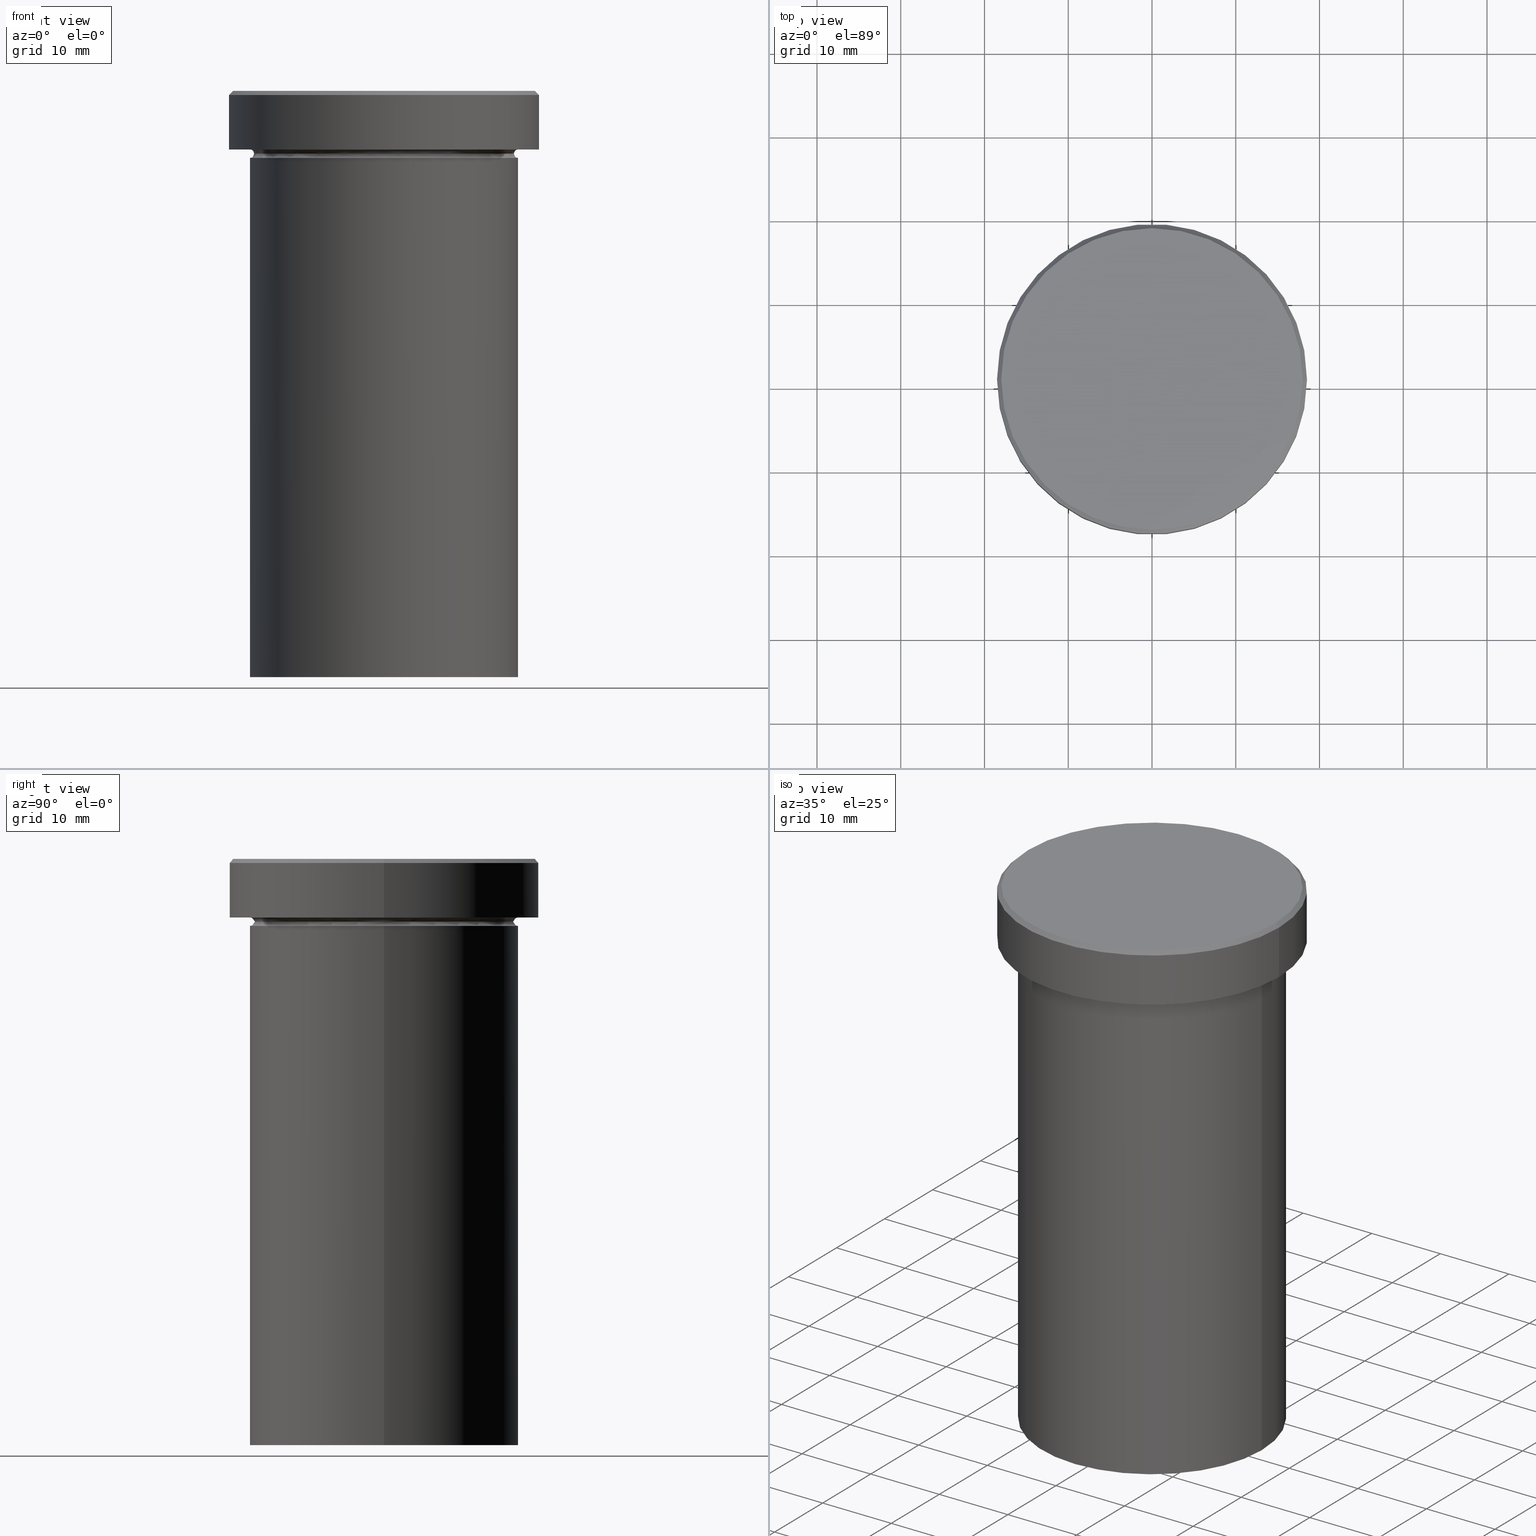
[diagram: canonical four-view strip — front | top / right | iso, engineering-drawing reading convention]
A machine part, canonical four-view strip (front | top / right | iso — engineering-drawing reading convention). The complete STEP part file that produces these views, byte-faithful:
ISO-10303-21;
HEADER;
FILE_DESCRIPTION (( 'STEP AP203' ),
    '1' );
FILE_NAME ('698d.STEP',
    '2024-01-02T19:14:31',
    ( '' ),
    ( '' ),
    'SwSTEP 2.0',
    'SolidWorks 2019',
    '' );
FILE_SCHEMA (( 'CONFIG_CONTROL_DESIGN' ));
ENDSEC;

DATA;
#1 = ORIENTED_EDGE ( 'NONE', *, *, #257, .T. ) ;
#2 = EDGE_CURVE ( 'NONE', #278, #381, #230, .T. ) ;
#3 =( NAMED_UNIT ( * ) SI_UNIT ( $, .STERADIAN. ) SOLID_ANGLE_UNIT ( ) );
#4 = EDGE_CURVE ( 'NONE', #285, #153, #401, .T. ) ;
#5 = ORIENTED_EDGE ( 'NONE', *, *, #2, .T. ) ;
#6 = CARTESIAN_POINT ( 'NONE',  ( 0.000000000000000000, 0.000000000000000000, 0.000000000000000000 ) ) ;
#7 = ORIENTED_EDGE ( 'NONE', *, *, #250, .T. ) ;
#8 = ADVANCED_FACE ( 'NONE', ( #37, #260 ), #130, .T. ) ;
#9 = DIRECTION ( 'NONE',  ( 1.000000000000000000, 0.000000000000000000, 0.000000000000000000 ) ) ;
#10 = AXIS2_PLACEMENT_3D ( 'NONE', #190, #322, #276 ) ;
#11 = VERTEX_POINT ( 'NONE', #324 ) ;
#12 = DIRECTION ( 'NONE',  ( 1.000000000000000000, 0.000000000000000000, 0.000000000000000000 ) ) ;
#13 = DIRECTION ( 'NONE',  ( 1.000000000000000000, 0.000000000000000000, 0.000000000000000000 ) ) ;
#14 = DIRECTION ( 'NONE',  ( 1.224646799147353207E-16, 1.000000000000000000, 0.000000000000000000 ) ) ;
#15 = LINE ( 'NONE', #136, #254 ) ;
#16 =( GEOMETRIC_REPRESENTATION_CONTEXT ( 3 ) GLOBAL_UNCERTAINTY_ASSIGNED_CONTEXT ( ( #65 ) ) GLOBAL_UNIT_ASSIGNED_CONTEXT ( ( #321, #158, #3 ) ) REPRESENTATION_CONTEXT ( 'NONE', 'WORKASPACE' ) );
#17 = DIRECTION ( 'NONE',  ( -0.7071067811865352493, 0.000000000000000000, -0.7071067811865597852 ) ) ;
#18 = APPROVAL_STATUS ( 'not_yet_approved' ) ;
#19 = DIRECTION ( 'NONE',  ( 1.000000000000000000, 0.000000000000000000, 0.000000000000000000 ) ) ;
#20 = DATE_TIME_ROLE ( 'classification_date' ) ;
#21 = CARTESIAN_POINT ( 'NONE',  ( -18.00000000000001066, 0.000000000000000000, 0.000000000000000000 ) ) ;
#22 = APPROVAL_PERSON_ORGANIZATION ( #125, #174, #330 ) ;
#23 = VECTOR ( 'NONE', #115, 1000.000000000000000 ) ;
#24 = CARTESIAN_POINT ( 'NONE',  ( 16.00000000000000000, 1.959434878635765131E-15, -6.999999999999999112 ) ) ;
#25 = EDGE_CURVE ( 'NONE', #36, #116, #100, .T. ) ;
#26 = LINE ( 'NONE', #146, #23 ) ;
#27 = ORIENTED_EDGE ( 'NONE', *, *, #2, .F. ) ;
#28 = DIRECTION ( 'NONE',  ( 1.000000000000000000, 0.000000000000000000, 0.000000000000000000 ) ) ;
#29 = ORIENTED_EDGE ( 'NONE', *, *, #4, .T. ) ;
#30 = DIRECTION ( 'NONE',  ( 0.000000000000000000, 0.000000000000000000, -1.000000000000000000 ) ) ;
#31 = ORIENTED_EDGE ( 'NONE', *, *, #111, .F. ) ;
#32 = EDGE_LOOP ( 'NONE', ( #300, #385, #249, #287 ) ) ;
#33 = ORIENTED_EDGE ( 'NONE', *, *, #380, .T. ) ;
#34 = CYLINDRICAL_SURFACE ( 'NONE', #152, 18.50000000000000000 ) ;
#35 = ORGANIZATION ( 'NEUR�EN�', 'NEUR�EN�', '' ) ;
#36 = VERTEX_POINT ( 'NONE', #225 ) ;
#37 = FACE_BOUND ( 'NONE', #179, .T. ) ;
#38 = DIRECTION ( 'NONE',  ( -0.000000000000000000, -0.000000000000000000, 1.000000000000000000 ) ) ;
#39 = APPROVAL_STATUS ( 'not_yet_approved' ) ;
#40 = DIRECTION ( 'NONE',  ( -1.000000000000000000, 0.000000000000000000, -0.000000000000000000 ) ) ;
#41 = AXIS2_PLACEMENT_3D ( 'NONE', #60, #360, #91 ) ;
#42 = LOCAL_TIME ( 20, 14, 31.00000000000000000, #226 ) ;
#43 = PERSON_AND_ORGANIZATION ( #218, #35 ) ;
#44 = CARTESIAN_POINT ( 'NONE',  ( 16.00000000000000000, 1.959434878635765131E-15, -7.500000000000000000 ) ) ;
#45 = DIRECTION ( 'NONE',  ( 1.000000000000000000, 0.000000000000000000, 0.000000000000000000 ) ) ;
#46 = EDGE_CURVE ( 'NONE', #216, #121, #319, .T. ) ;
#47 = AXIS2_PLACEMENT_3D ( 'NONE', #269, #232, #204 ) ;
#48 = CC_DESIGN_PERSON_AND_ORGANIZATION_ASSIGNMENT ( #316, #286, ( #346 ) ) ;
#49 = FACE_OUTER_BOUND ( 'NONE', #212, .T. ) ;
#50 = AXIS2_PLACEMENT_3D ( 'NONE', #73, #163, #19 ) ;
#51 = VECTOR ( 'NONE', #210, 1000.000000000000000 ) ;
#52 = DIRECTION ( 'NONE',  ( -0.000000000000000000, -0.000000000000000000, 1.000000000000000000 ) ) ;
#53 = ORIENTED_EDGE ( 'NONE', *, *, #221, .T. ) ;
#54 = PLANE ( 'NONE',  #47 ) ;
#55 = EDGE_LOOP ( 'NONE', ( #297, #29 ) ) ;
#56 = DIRECTION ( 'NONE',  ( -0.000000000000000000, -0.000000000000000000, 1.000000000000000000 ) ) ;
#57 = CC_DESIGN_PERSON_AND_ORGANIZATION_ASSIGNMENT ( #323, #261, ( #283 ) ) ;
#58 = ORIENTED_EDGE ( 'NONE', *, *, #154, .F. ) ;
#59 = ADVANCED_FACE ( 'NONE', ( #227 ), #160, .T. ) ;
#60 = CARTESIAN_POINT ( 'NONE',  ( 0.000000000000000000, 0.000000000000000000, 0.000000000000000000 ) ) ;
#61 = AXIS2_PLACEMENT_3D ( 'NONE', #406, #52, #369 ) ;
#62 = ORIENTED_EDGE ( 'NONE', *, *, #169, .T. ) ;
#63 = ORIENTED_EDGE ( 'NONE', *, *, #248, .T. ) ;
#64 = DIRECTION ( 'NONE',  ( -1.000000000000000000, 0.000000000000000000, 0.000000000000000000 ) ) ;
#65 = UNCERTAINTY_MEASURE_WITH_UNIT (LENGTH_MEASURE( 1.000000000000000082E-05 ), #321, 'distance_accuracy_value', 'NONE');
#66 = CARTESIAN_POINT ( 'NONE',  ( 0.000000000000000000, 18.50000000000000000, -6.999999999999999112 ) ) ;
#67 = DIRECTION ( 'NONE',  ( -0.000000000000000000, -0.000000000000000000, 1.000000000000000000 ) ) ;
#68 = AXIS2_PLACEMENT_3D ( 'NONE', #78, #355, #12 ) ;
#69 = AXIS2_PLACEMENT_3D ( 'NONE', #302, #208, #45 ) ;
#70 = DIRECTION ( 'NONE',  ( -1.000000000000000000, 1.224646799147349509E-16, 0.000000000000000000 ) ) ;
#71 = DIRECTION ( 'NONE',  ( -0.000000000000000000, -0.000000000000000000, 1.000000000000000000 ) ) ;
#72 = ADVANCED_BREP_SHAPE_REPRESENTATION ( '698d', ( #240, #195 ), #16 ) ;
#73 = CARTESIAN_POINT ( 'NONE',  ( 0.000000000000000000, 0.000000000000000000, -7.500000000000000000 ) ) ;
#74 = PERSON_AND_ORGANIZATION_ROLE ( 'design_supplier' ) ;
#75 = DIRECTION ( 'NONE',  ( -1.224646799147353207E-16, 1.000000000000000000, 0.000000000000000000 ) ) ;
#76 = CALENDAR_DATE ( 2024, 2, 1 ) ;
#77 = TOROIDAL_SURFACE ( 'NONE', #50, 16.00000000000000000, 0.5000000000000000000 ) ;
#78 = CARTESIAN_POINT ( 'NONE',  ( 0.000000000000000000, 0.000000000000000000, 0.000000000000000000 ) ) ;
#79 = CIRCLE ( 'NONE', #112, 15.50000000000000000 ) ;
#80 = PERSON_AND_ORGANIZATION ( #218, #35 ) ;
#81 = LINE ( 'NONE', #374, #51 ) ;
#82 = CALENDAR_DATE ( 2024, 2, 1 ) ;
#83 = VECTOR ( 'NONE', #404, 1000.000000000000000 ) ;
#84 = CARTESIAN_POINT ( 'NONE',  ( -16.00000000000000000, 0.000000000000000000, -7.500000000000000000 ) ) ;
#85 = ORIENTED_EDGE ( 'NONE', *, *, #169, .F. ) ;
#86 = CIRCLE ( 'NONE', #333, 16.00000000000000000 ) ;
#87 = DIRECTION ( 'NONE',  ( -0.000000000000000000, -0.000000000000000000, 1.000000000000000000 ) ) ;
#88 = VERTEX_POINT ( 'NONE', #266 ) ;
#89 = DIRECTION ( 'NONE',  ( 1.000000000000000000, 0.000000000000000000, 0.000000000000000000 ) ) ;
#90 = EDGE_LOOP ( 'NONE', ( #148, #53, #85, #31 ) ) ;
#91 = DIRECTION ( 'NONE',  ( -1.000000000000000000, 0.000000000000000000, 0.000000000000000000 ) ) ;
#92 = EDGE_LOOP ( 'NONE', ( #182, #156, #339, #162 ) ) ;
#93 = CIRCLE ( 'NONE', #328, 16.00000000000000000 ) ;
#94 = EDGE_LOOP ( 'NONE', ( #242, #1, #175, #58 ) ) ;
#95 = PLANE ( 'NONE',  #10 ) ;
#96 = PRODUCT_RELATED_PRODUCT_CATEGORY ( 'detail', '', ( #346 ) ) ;
#97 = CARTESIAN_POINT ( 'NONE',  ( 0.000000000000000000, 0.000000000000000000, -7.500000000000000000 ) ) ;
#98 = LINE ( 'NONE', #295, #347 ) ;
#99 = DIRECTION ( 'NONE',  ( 0.000000000000000000, 0.000000000000000000, -1.000000000000000000 ) ) ;
#100 = CIRCLE ( 'NONE', #200, 0.5000000000000004441 ) ;
#101 = AXIS2_PLACEMENT_3D ( 'NONE', #173, #372, #28 ) ;
#102 = VERTEX_POINT ( 'NONE', #358 ) ;
#103 = APPROVAL_DATE_TIME ( #133, #400 ) ;
#104 = DIRECTION ( 'NONE',  ( -0.000000000000000000, -0.000000000000000000, 1.000000000000000000 ) ) ;
#105 = APPROVAL_STATUS ( 'not_yet_approved' ) ;
#106 = EDGE_LOOP ( 'NONE', ( #383, #184, #326, #315 ) ) ;
#107 = SECURITY_CLASSIFICATION_LEVEL ( 'unclassified' ) ;
#108 = FACE_OUTER_BOUND ( 'NONE', #293, .T. ) ;
#109 = AXIS2_PLACEMENT_3D ( 'NONE', #84, #202, #113 ) ;
#110 = COORDINATED_UNIVERSAL_TIME_OFFSET ( 1, 0, .AHEAD. ) ;
#111 = EDGE_CURVE ( 'NONE', #153, #348, #98, .T. ) ;
#112 = AXIS2_PLACEMENT_3D ( 'NONE', #311, #56, #147 ) ;
#113 = DIRECTION ( 'NONE',  ( 0.000000000000000000, 0.000000000000000000, -1.000000000000000000 ) ) ;
#114 = CARTESIAN_POINT ( 'NONE',  ( 0.000000000000000000, 0.000000000000000000, -70.00000000000000000 ) ) ;
#115 = DIRECTION ( 'NONE',  ( 0.7071067811865352493, 8.659560562354782482E-17, -0.7071067811865597852 ) ) ;
#116 = VERTEX_POINT ( 'NONE', #258 ) ;
#117 = ADVANCED_FACE ( 'NONE', ( #256 ), #77, .F. ) ;
#118 = FACE_OUTER_BOUND ( 'NONE', #32, .T. ) ;
#119 = EDGE_CURVE ( 'NONE', #36, #278, #288, .T. ) ;
#120 = ORIENTED_EDGE ( 'NONE', *, *, #124, .T. ) ;
#121 = VERTEX_POINT ( 'NONE', #390 ) ;
#122 = DIRECTION ( 'NONE',  ( 0.000000000000000000, 0.000000000000000000, 1.000000000000000000 ) ) ;
#123 = ORIENTED_EDGE ( 'NONE', *, *, #257, .F. ) ;
#124 = EDGE_CURVE ( 'NONE', #205, #88, #289, .T. ) ;
#125 = PERSON_AND_ORGANIZATION ( #218, #35 ) ;
#126 = CIRCLE ( 'NONE', #231, 16.00000000000000000 ) ;
#127 = LOCAL_TIME ( 20, 14, 31.00000000000000000, #110 ) ;
#128 = ORIENTED_EDGE ( 'NONE', *, *, #238, .F. ) ;
#129 = FACE_OUTER_BOUND ( 'NONE', #94, .T. ) ;
#130 = PLANE ( 'NONE',  #157 ) ;
#131 = CARTESIAN_POINT ( 'NONE',  ( -16.00000000000000000, 0.000000000000000000, -6.999999999999999112 ) ) ;
#132 = ORIENTED_EDGE ( 'NONE', *, *, #248, .F. ) ;
#133 = DATE_AND_TIME ( #370, #42 ) ;
#134 = CLOSED_SHELL ( 'NONE', ( #334, #357, #203, #59, #405, #149, #143, #263, #8, #304, #117, #303, #274 ) ) ;
#135 = AXIS2_PLACEMENT_3D ( 'NONE', #178, #239, #172 ) ;
#136 = CARTESIAN_POINT ( 'NONE',  ( -16.00000000000000000, 1.959434878635765131E-15, 0.000000000000000000 ) ) ;
#137 = DIRECTION ( 'NONE',  ( 0.000000000000000000, -1.000000000000000000, 0.000000000000000000 ) ) ;
#138 = COORDINATED_UNIVERSAL_TIME_OFFSET ( 1, 0, .AHEAD. ) ;
#139 = CARTESIAN_POINT ( 'NONE',  ( 18.00000000000001066, 2.234980408443920004E-15, 0.000000000000000000 ) ) ;
#140 = EDGE_CURVE ( 'NONE', #11, #88, #15, .T. ) ;
#141 = DATE_AND_TIME ( #82, #272 ) ;
#142 = LOCAL_TIME ( 20, 14, 31.00000000000000000, #138 ) ;
#143 = ADVANCED_FACE ( 'NONE', ( #388 ), #95, .T. ) ;
#144 = TOROIDAL_SURFACE ( 'NONE', #101, 16.00000000000000000, 0.5000000000000000000 ) ;
#145 = CIRCLE ( 'NONE', #109, 0.5000000000000004441 ) ;
#146 = CARTESIAN_POINT ( 'NONE',  ( 18.00000000000001066, 2.204364238465237006E-15, 0.000000000000000000 ) ) ;
#147 = DIRECTION ( 'NONE',  ( 1.000000000000000000, 0.000000000000000000, 0.000000000000000000 ) ) ;
#148 = ORIENTED_EDGE ( 'NONE', *, *, #4, .F. ) ;
#149 = ADVANCED_FACE ( 'NONE', ( #331 ), #54, .T. ) ;
#150 = DIRECTION ( 'NONE',  ( 0.000000000000000000, 0.000000000000000000, -1.000000000000000000 ) ) ;
#151 = APPROVAL ( #39, 'NEUR�EN�' ) ;
#152 = AXIS2_PLACEMENT_3D ( 'NONE', #382, #67, #187 ) ;
#153 = VERTEX_POINT ( 'NONE', #21 ) ;
#154 = EDGE_CURVE ( 'NONE', #88, #116, #262, .T. ) ;
#155 = ORIENTED_EDGE ( 'NONE', *, *, #351, .F. ) ;
#156 = ORIENTED_EDGE ( 'NONE', *, *, #119, .T. ) ;
#157 = AXIS2_PLACEMENT_3D ( 'NONE', #66, #264, #40 ) ;
#158 =( NAMED_UNIT ( * ) PLANE_ANGLE_UNIT ( ) SI_UNIT ( $, .RADIAN. ) );
#159 = AXIS2_PLACEMENT_3D ( 'NONE', #191, #30, #356 ) ;
#160 = CYLINDRICAL_SURFACE ( 'NONE', #164, 16.00000000000000000 ) ;
#161 = CARTESIAN_POINT ( 'NONE',  ( 0.000000000000000000, 0.000000000000000000, -7.500000000000000000 ) ) ;
#162 = ORIENTED_EDGE ( 'NONE', *, *, #250, .F. ) ;
#163 = DIRECTION ( 'NONE',  ( -0.000000000000000000, -0.000000000000000000, 1.000000000000000000 ) ) ;
#164 = AXIS2_PLACEMENT_3D ( 'NONE', #196, #38, #329 ) ;
#165 = CIRCLE ( 'NONE', #320, 18.50000000000000000 ) ;
#166 = CARTESIAN_POINT ( 'NONE',  ( 16.00000000000000000, 0.000000000000000000, -7.500000000000000000 ) ) ;
#167 = PERSON_AND_ORGANIZATION_ROLE ( 'classification_officer' ) ;
#168 = DIRECTION ( 'NONE',  ( -0.000000000000000000, -0.000000000000000000, 1.000000000000000000 ) ) ;
#169 = EDGE_CURVE ( 'NONE', #348, #121, #296, .T. ) ;
#170 = CARTESIAN_POINT ( 'NONE',  ( 18.50000000000000000, 0.000000000000000000, -6.999999999999999112 ) ) ;
#171 = AXIS2_PLACEMENT_3D ( 'NONE', #279, #408, #309 ) ;
#172 = DIRECTION ( 'NONE',  ( 1.000000000000000000, 0.000000000000000000, 0.000000000000000000 ) ) ;
#173 = CARTESIAN_POINT ( 'NONE',  ( 0.000000000000000000, 0.000000000000000000, -7.500000000000000000 ) ) ;
#174 = APPROVAL ( #105, 'NEUR�EN�' ) ;
#175 = ORIENTED_EDGE ( 'NONE', *, *, #199, .T. ) ;
#176 = CARTESIAN_POINT ( 'NONE',  ( -15.50000000000000000, 1.928818708657081344E-15, -7.500000000000000000 ) ) ;
#177 = ORIENTED_EDGE ( 'NONE', *, *, #46, .F. ) ;
#178 = CARTESIAN_POINT ( 'NONE',  ( 0.000000000000000000, 0.000000000000000000, 0.000000000000000000 ) ) ;
#179 = EDGE_LOOP ( 'NONE', ( #209, #5 ) ) ;
#180 = AXIS2_PLACEMENT_3D ( 'NONE', #185, #352, #391 ) ;
#181 = FACE_OUTER_BOUND ( 'NONE', #392, .T. ) ;
#182 = ORIENTED_EDGE ( 'NONE', *, *, #351, .T. ) ;
#183 = APPLICATION_PROTOCOL_DEFINITION ( 'international standard', 'config_control_design', 1994, #246 ) ;
#184 = ORIENTED_EDGE ( 'NONE', *, *, #140, .T. ) ;
#185 = CARTESIAN_POINT ( 'NONE',  ( 0.000000000000000000, 0.000000000000000000, 0.000000000000000000 ) ) ;
#186 = CARTESIAN_POINT ( 'NONE',  ( 18.50000000000000000, 0.000000000000000000, 0.000000000000000000 ) ) ;
#187 = DIRECTION ( 'NONE',  ( 1.000000000000000000, 0.000000000000000000, 0.000000000000000000 ) ) ;
#188 = CIRCLE ( 'NONE', #337, 15.50000000000000000 ) ;
#189 = CC_DESIGN_DATE_AND_TIME_ASSIGNMENT ( #394, #327, ( #283 ) ) ;
#190 = CARTESIAN_POINT ( 'NONE',  ( 0.000000000000000000, 0.000000000000000000, 0.000000000000000000 ) ) ;
#191 = CARTESIAN_POINT ( 'NONE',  ( 0.000000000000000000, 0.000000000000000000, -7.500000000000000000 ) ) ;
#192 = DIRECTION ( 'NONE',  ( 0.000000000000000000, 0.000000000000000000, -1.000000000000000000 ) ) ;
#193 = DIRECTION ( 'NONE',  ( -1.000000000000000000, -1.224646799147349509E-16, 0.000000000000000000 ) ) ;
#194 = COORDINATED_UNIVERSAL_TIME_OFFSET ( 1, 0, .AHEAD. ) ;
#195 = AXIS2_PLACEMENT_3D ( 'NONE', #6, #122, #251 ) ;
#196 = CARTESIAN_POINT ( 'NONE',  ( 0.000000000000000000, 0.000000000000000000, 0.000000000000000000 ) ) ;
#197 = APPROVAL_PERSON_ORGANIZATION ( #270, #151, #399 ) ;
#198 = FACE_OUTER_BOUND ( 'NONE', #284, .T. ) ;
#199 = EDGE_CURVE ( 'NONE', #229, #116, #81, .T. ) ;
#200 = AXIS2_PLACEMENT_3D ( 'NONE', #166, #137, #192 ) ;
#201 = CONICAL_SURFACE ( 'NONE', #41, 18.00000000000001066, 0.7853981633974309595 ) ;
#202 = DIRECTION ( 'NONE',  ( -0.000000000000000000, -1.000000000000000000, -0.000000000000000000 ) ) ;
#203 = ADVANCED_FACE ( 'NONE', ( #198 ), #144, .F. ) ;
#204 = DIRECTION ( 'NONE',  ( -1.000000000000000000, 0.000000000000000000, -0.000000000000000000 ) ) ;
#205 = VERTEX_POINT ( 'NONE', #176 ) ;
#206 = CIRCLE ( 'NONE', #69, 18.50000000000000000 ) ;
#207 = CC_DESIGN_APPROVAL ( #151, ( #338 ) ) ;
#208 = DIRECTION ( 'NONE',  ( -0.000000000000000000, -0.000000000000000000, 1.000000000000000000 ) ) ;
#209 = ORIENTED_EDGE ( 'NONE', *, *, #341, .T. ) ;
#210 = DIRECTION ( 'NONE',  ( -0.000000000000000000, -0.000000000000000000, 1.000000000000000000 ) ) ;
#211 = EDGE_CURVE ( 'NONE', #121, #348, #165, .T. ) ;
#212 = EDGE_LOOP ( 'NONE', ( #132, #310, #312, #377 ) ) ;
#213 = DIRECTION ( 'NONE',  ( -0.000000000000000000, -0.000000000000000000, 1.000000000000000000 ) ) ;
#214 = ORIENTED_EDGE ( 'NONE', *, *, #366, .F. ) ;
#215 = PRODUCT_DEFINITION_FORMATION_WITH_SPECIFIED_SOURCE ( 'LIBOVOLN�', '', #346, .NOT_KNOWN. ) ;
#216 = VERTEX_POINT ( 'NONE', #170 ) ;
#217 = DIRECTION ( 'NONE',  ( -0.000000000000000000, -0.000000000000000000, 1.000000000000000000 ) ) ;
#218 = PERSON ( 'NEUR�EN�', 'NEUR�EN�', 'NEUR�EN�', ('NEUR�EN�'), ('NEUR�EN�'), ('NEUR�EN�') ) ;
#219 = ORIENTED_EDGE ( 'NONE', *, *, #236, .T. ) ;
#220 = CYLINDRICAL_SURFACE ( 'NONE', #180, 16.00000000000000000 ) ;
#221 = EDGE_CURVE ( 'NONE', #285, #121, #26, .T. ) ;
#222 = CARTESIAN_POINT ( 'NONE',  ( -16.00000000000000000, 1.959434878635765131E-15, -7.500000000000000000 ) ) ;
#223 = DIRECTION ( 'NONE',  ( -1.000000000000000000, 0.000000000000000000, 0.000000000000000000 ) ) ;
#224 = CIRCLE ( 'NONE', #275, 16.00000000000000000 ) ;
#225 = CARTESIAN_POINT ( 'NONE',  ( 15.50000000000000000, 0.000000000000000000, -7.500000000000000000 ) ) ;
#226 = COORDINATED_UNIVERSAL_TIME_OFFSET ( 1, 0, .AHEAD. ) ;
#227 = FACE_OUTER_BOUND ( 'NONE', #106, .T. ) ;
#228 = DATE_AND_TIME ( #268, #142 ) ;
#229 = VERTEX_POINT ( 'NONE', #336 ) ;
#230 = CIRCLE ( 'NONE', #280, 16.00000000000000000 ) ;
#231 = AXIS2_PLACEMENT_3D ( 'NONE', #237, #403, #343 ) ;
#232 = DIRECTION ( 'NONE',  ( 0.000000000000000000, 0.000000000000000000, -1.000000000000000000 ) ) ;
#233 = DATE_AND_TIME ( #332, #127 ) ;
#234 = EDGE_CURVE ( 'NONE', #229, #11, #126, .T. ) ;
#235 = VECTOR ( 'NONE', #361, 1000.000000000000000 ) ;
#236 = EDGE_CURVE ( 'NONE', #36, #205, #79, .T. ) ;
#237 = CARTESIAN_POINT ( 'NONE',  ( 0.000000000000000000, 0.000000000000000000, -70.00000000000000000 ) ) ;
#238 = EDGE_CURVE ( 'NONE', #102, #216, #206, .T. ) ;
#239 = DIRECTION ( 'NONE',  ( -0.000000000000000000, -0.000000000000000000, 1.000000000000000000 ) ) ;
#240 = MANIFOLD_SOLID_BREP ( 'Zkosen�1', #134 ) ;
#241 = CARTESIAN_POINT ( 'NONE',  ( -18.50000000000000000, 2.265596578422603396E-15, 0.000000000000000000 ) ) ;
#242 = ORIENTED_EDGE ( 'NONE', *, *, #140, .F. ) ;
#243 = LOCAL_TIME ( 20, 14, 31.00000000000000000, #397 ) ;
#244 = CARTESIAN_POINT ( 'NONE',  ( 0.000000000000000000, 0.000000000000000000, 0.000000000000000000 ) ) ;
#245 = ORIENTED_EDGE ( 'NONE', *, *, #366, .T. ) ;
#246 = APPLICATION_CONTEXT ( 'configuration controlled 3d designs of mechanical parts and assemblies' ) ;
#247 = CC_DESIGN_PERSON_AND_ORGANIZATION_ASSIGNMENT ( #362, #74, ( #215 ) ) ;
#248 = EDGE_CURVE ( 'NONE', #102, #348, #277, .T. ) ;
#249 = ORIENTED_EDGE ( 'NONE', *, *, #111, .T. ) ;
#250 = EDGE_CURVE ( 'NONE', #205, #381, #145, .T. ) ;
#251 = DIRECTION ( 'NONE',  ( 1.000000000000000000, 0.000000000000000000, 0.000000000000000000 ) ) ;
#252 = CC_DESIGN_PERSON_AND_ORGANIZATION_ASSIGNMENT ( #396, #167, ( #338 ) ) ;
#253 = EDGE_LOOP ( 'NONE', ( #214, #128 ) ) ;
#254 = VECTOR ( 'NONE', #168, 1000.000000000000000 ) ;
#255 = FACE_OUTER_BOUND ( 'NONE', #90, .T. ) ;
#256 = FACE_OUTER_BOUND ( 'NONE', #281, .T. ) ;
#257 = EDGE_CURVE ( 'NONE', #11, #229, #86, .T. ) ;
#258 = CARTESIAN_POINT ( 'NONE',  ( 16.00000000000000000, 0.000000000000000000, -8.000000000000000000 ) ) ;
#259 = CARTESIAN_POINT ( 'NONE',  ( 0.000000000000000000, 0.000000000000000000, -8.000000000000000000 ) ) ;
#260 = FACE_OUTER_BOUND ( 'NONE', #253, .T. ) ;
#261 = PERSON_AND_ORGANIZATION_ROLE ( 'creator' ) ;
#262 = CIRCLE ( 'NONE', #61, 16.00000000000000000 ) ;
#263 = ADVANCED_FACE ( 'NONE', ( #49 ), #340, .T. ) ;
#264 = DIRECTION ( 'NONE',  ( 0.000000000000000000, 0.000000000000000000, -1.000000000000000000 ) ) ;
#265 = PERSON_AND_ORGANIZATION_ROLE ( 'creator' ) ;
#266 = CARTESIAN_POINT ( 'NONE',  ( -16.00000000000000000, 1.959434878635765131E-15, -8.000000000000000000 ) ) ;
#267 = EDGE_CURVE ( 'NONE', #153, #285, #386, .T. ) ;
#268 = CALENDAR_DATE ( 2024, 2, 1 ) ;
#269 = CARTESIAN_POINT ( 'NONE',  ( 0.000000000000000000, 16.00000000000000000, -70.00000000000000000 ) ) ;
#270 = PERSON_AND_ORGANIZATION ( #218, #35 ) ;
#271 = CC_DESIGN_APPROVAL ( #174, ( #283 ) ) ;
#272 = LOCAL_TIME ( 20, 14, 31.00000000000000000, #194 ) ;
#273 = DIRECTION ( 'NONE',  ( 0.000000000000000000, 0.000000000000000000, -1.000000000000000000 ) ) ;
#274 = ADVANCED_FACE ( 'NONE', ( #118 ), #349, .T. ) ;
#275 = AXIS2_PLACEMENT_3D ( 'NONE', #354, #292, #64 ) ;
#276 = DIRECTION ( 'NONE',  ( 1.000000000000000000, 0.000000000000000000, 0.000000000000000000 ) ) ;
#277 = LINE ( 'NONE', #241, #83 ) ;
#278 = VERTEX_POINT ( 'NONE', #24 ) ;
#279 = CARTESIAN_POINT ( 'NONE',  ( 0.000000000000000000, 0.000000000000000000, 0.000000000000000000 ) ) ;
#280 = AXIS2_PLACEMENT_3D ( 'NONE', #365, #104, #363 ) ;
#281 = EDGE_LOOP ( 'NONE', ( #342, #317, #291, #33 ) ) ;
#282 = CIRCLE ( 'NONE', #375, 18.50000000000000000 ) ;
#283 = PRODUCT_DEFINITION ( 'NEZN�M�', '', #215, #314 ) ;
#284 = EDGE_LOOP ( 'NONE', ( #155, #120, #344, #407 ) ) ;
#285 = VERTEX_POINT ( 'NONE', #139 ) ;
#286 = PERSON_AND_ORGANIZATION_ROLE ( 'design_owner' ) ;
#287 = ORIENTED_EDGE ( 'NONE', *, *, #211, .F. ) ;
#288 = CIRCLE ( 'NONE', #371, 0.5000000000000004441 ) ;
#289 = CIRCLE ( 'NONE', #409, 0.5000000000000004441 ) ;
#290 = CARTESIAN_POINT ( 'NONE',  ( 0.000000000000000000, 0.000000000000000000, -6.999999999999999112 ) ) ;
#291 = ORIENTED_EDGE ( 'NONE', *, *, #25, .T. ) ;
#292 = DIRECTION ( 'NONE',  ( -0.000000000000000000, -0.000000000000000000, 1.000000000000000000 ) ) ;
#293 = EDGE_LOOP ( 'NONE', ( #308, #219, #7, #27 ) ) ;
#294 = APPLICATION_CONTEXT ( 'configuration controlled 3d designs of mechanical parts and assemblies' ) ;
#295 = CARTESIAN_POINT ( 'NONE',  ( -18.00000000000001066, 0.000000000000000000, 0.000000000000000000 ) ) ;
#296 = CIRCLE ( 'NONE', #359, 18.50000000000000000 ) ;
#297 = ORIENTED_EDGE ( 'NONE', *, *, #267, .T. ) ;
#298 = SHAPE_DEFINITION_REPRESENTATION ( #299, #72 ) ;
#299 = PRODUCT_DEFINITION_SHAPE ( 'NONE', 'NONE',  #283 ) ;
#300 = ORIENTED_EDGE ( 'NONE', *, *, #221, .F. ) ;
#301 = APPROVAL_DATE_TIME ( #233, #151 ) ;
#302 = CARTESIAN_POINT ( 'NONE',  ( 0.000000000000000000, 0.000000000000000000, -6.999999999999999112 ) ) ;
#303 = ADVANCED_FACE ( 'NONE', ( #108 ), #367, .F. ) ;
#304 = ADVANCED_FACE ( 'NONE', ( #129 ), #220, .T. ) ;
#305 = DIRECTION ( 'NONE',  ( 0.000000000000000000, 0.000000000000000000, -1.000000000000000000 ) ) ;
#306 = CC_DESIGN_SECURITY_CLASSIFICATION ( #338, ( #215 ) ) ;
#307 = CARTESIAN_POINT ( 'NONE',  ( 0.000000000000000000, 0.000000000000000000, -0.5000000000000073275 ) ) ;
#308 = ORIENTED_EDGE ( 'NONE', *, *, #119, .F. ) ;
#309 = DIRECTION ( 'NONE',  ( 1.000000000000000000, 0.000000000000000000, 0.000000000000000000 ) ) ;
#310 = ORIENTED_EDGE ( 'NONE', *, *, #238, .T. ) ;
#311 = CARTESIAN_POINT ( 'NONE',  ( 0.000000000000000000, 0.000000000000000000, -7.500000000000000000 ) ) ;
#312 = ORIENTED_EDGE ( 'NONE', *, *, #46, .T. ) ;
#313 = AXIS2_PLACEMENT_3D ( 'NONE', #161, #99, #223 ) ;
#314 = DESIGN_CONTEXT ( 'detailed design', #294, 'design' ) ;
#315 = ORIENTED_EDGE ( 'NONE', *, *, #199, .F. ) ;
#316 = PERSON_AND_ORGANIZATION ( #218, #35 ) ;
#317 = ORIENTED_EDGE ( 'NONE', *, *, #236, .F. ) ;
#318 = CARTESIAN_POINT ( 'NONE',  ( -18.50000000000000000, 2.265596578422603396E-15, -0.5000000000000073275 ) ) ;
#319 = LINE ( 'NONE', #186, #235 ) ;
#320 = AXIS2_PLACEMENT_3D ( 'NONE', #307, #150, #373 ) ;
#321 =( LENGTH_UNIT ( ) NAMED_UNIT ( * ) SI_UNIT ( .MILLI., .METRE. ) );
#322 = DIRECTION ( 'NONE',  ( 0.000000000000000000, -0.000000000000000000, 1.000000000000000000 ) ) ;
#323 = PERSON_AND_ORGANIZATION ( #218, #35 ) ;
#324 = CARTESIAN_POINT ( 'NONE',  ( -16.00000000000000000, 1.959434878635765131E-15, -70.00000000000000000 ) ) ;
#325 = CC_DESIGN_PERSON_AND_ORGANIZATION_ASSIGNMENT ( #43, #265, ( #215 ) ) ;
#326 = ORIENTED_EDGE ( 'NONE', *, *, #380, .F. ) ;
#327 = DATE_TIME_ROLE ( 'creation_date' ) ;
#328 = AXIS2_PLACEMENT_3D ( 'NONE', #259, #217, #13 ) ;
#329 = DIRECTION ( 'NONE',  ( 1.000000000000000000, 0.000000000000000000, 0.000000000000000000 ) ) ;
#330 = APPROVAL_ROLE ( '' ) ;
#331 = FACE_OUTER_BOUND ( 'NONE', #353, .T. ) ;
#332 = CALENDAR_DATE ( 2024, 2, 1 ) ;
#333 = AXIS2_PLACEMENT_3D ( 'NONE', #114, #87, #335 ) ;
#334 = ADVANCED_FACE ( 'NONE', ( #255 ), #201, .T. ) ;
#335 = DIRECTION ( 'NONE',  ( 1.000000000000000000, 0.000000000000000000, 0.000000000000000000 ) ) ;
#336 = CARTESIAN_POINT ( 'NONE',  ( 16.00000000000000000, 0.000000000000000000, -70.00000000000000000 ) ) ;
#337 = AXIS2_PLACEMENT_3D ( 'NONE', #97, #71, #9 ) ;
#338 = SECURITY_CLASSIFICATION ( '', '', #107 ) ;
#339 = ORIENTED_EDGE ( 'NONE', *, *, #341, .F. ) ;
#340 = CYLINDRICAL_SURFACE ( 'NONE', #135, 18.50000000000000000 ) ;
#341 = EDGE_CURVE ( 'NONE', #381, #278, #224, .T. ) ;
#342 = ORIENTED_EDGE ( 'NONE', *, *, #124, .F. ) ;
#343 = DIRECTION ( 'NONE',  ( 1.000000000000000000, 0.000000000000000000, 0.000000000000000000 ) ) ;
#344 = ORIENTED_EDGE ( 'NONE', *, *, #154, .T. ) ;
#345 = DIRECTION ( 'NONE',  ( 1.000000000000000000, 0.000000000000000000, 0.000000000000000000 ) ) ;
#346 = PRODUCT ( '698d', '698d', '', ( #384 ) ) ;
#347 = VECTOR ( 'NONE', #17, 1000.000000000000000 ) ;
#348 = VERTEX_POINT ( 'NONE', #318 ) ;
#349 = CONICAL_SURFACE ( 'NONE', #402, 18.00000000000001066, 0.7853981633974309595 ) ;
#350 = APPROVAL_PERSON_ORGANIZATION ( #80, #400, #368 ) ;
#351 = EDGE_CURVE ( 'NONE', #205, #36, #188, .T. ) ;
#352 = DIRECTION ( 'NONE',  ( -0.000000000000000000, -0.000000000000000000, 1.000000000000000000 ) ) ;
#353 = EDGE_LOOP ( 'NONE', ( #395, #123 ) ) ;
#354 = CARTESIAN_POINT ( 'NONE',  ( 0.000000000000000000, 0.000000000000000000, -6.999999999999999112 ) ) ;
#355 = DIRECTION ( 'NONE',  ( -0.000000000000000000, -0.000000000000000000, 1.000000000000000000 ) ) ;
#356 = DIRECTION ( 'NONE',  ( -1.000000000000000000, 0.000000000000000000, 0.000000000000000000 ) ) ;
#357 = ADVANCED_FACE ( 'NONE', ( #387 ), #393, .F. ) ;
#358 = CARTESIAN_POINT ( 'NONE',  ( -18.50000000000000000, 2.265596578422603396E-15, -6.999999999999999112 ) ) ;
#359 = AXIS2_PLACEMENT_3D ( 'NONE', #398, #273, #89 ) ;
#360 = DIRECTION ( 'NONE',  ( 0.000000000000000000, 0.000000000000000000, -1.000000000000000000 ) ) ;
#361 = DIRECTION ( 'NONE',  ( -0.000000000000000000, -0.000000000000000000, 1.000000000000000000 ) ) ;
#362 = PERSON_AND_ORGANIZATION ( #218, #35 ) ;
#363 = DIRECTION ( 'NONE',  ( -1.000000000000000000, 0.000000000000000000, 0.000000000000000000 ) ) ;
#364 = APPROVAL_DATE_TIME ( #228, #174 ) ;
#365 = CARTESIAN_POINT ( 'NONE',  ( 0.000000000000000000, 0.000000000000000000, -6.999999999999999112 ) ) ;
#366 = EDGE_CURVE ( 'NONE', #216, #102, #282, .T. ) ;
#367 = TOROIDAL_SURFACE ( 'NONE', #313, 16.00000000000000000, 0.5000000000000000000 ) ;
#368 = APPROVAL_ROLE ( '' ) ;
#369 = DIRECTION ( 'NONE',  ( 1.000000000000000000, 0.000000000000000000, 0.000000000000000000 ) ) ;
#370 = CALENDAR_DATE ( 2024, 2, 1 ) ;
#371 = AXIS2_PLACEMENT_3D ( 'NONE', #44, #75, #193 ) ;
#372 = DIRECTION ( 'NONE',  ( -0.000000000000000000, -0.000000000000000000, 1.000000000000000000 ) ) ;
#373 = DIRECTION ( 'NONE',  ( 1.000000000000000000, 0.000000000000000000, 0.000000000000000000 ) ) ;
#374 = CARTESIAN_POINT ( 'NONE',  ( 16.00000000000000000, 0.000000000000000000, 0.000000000000000000 ) ) ;
#375 = AXIS2_PLACEMENT_3D ( 'NONE', #290, #213, #345 ) ;
#376 = CC_DESIGN_APPROVAL ( #400, ( #215 ) ) ;
#377 = ORIENTED_EDGE ( 'NONE', *, *, #211, .T. ) ;
#378 = CC_DESIGN_DATE_AND_TIME_ASSIGNMENT ( #141, #20, ( #338 ) ) ;
#379 = DIRECTION ( 'NONE',  ( -1.000000000000000000, 0.000000000000000000, 0.000000000000000000 ) ) ;
#380 = EDGE_CURVE ( 'NONE', #116, #88, #93, .T. ) ;
#381 = VERTEX_POINT ( 'NONE', #131 ) ;
#382 = CARTESIAN_POINT ( 'NONE',  ( 0.000000000000000000, 0.000000000000000000, 0.000000000000000000 ) ) ;
#383 = ORIENTED_EDGE ( 'NONE', *, *, #234, .T. ) ;
#384 = MECHANICAL_CONTEXT ( 'NONE', #246, 'mechanical' ) ;
#385 = ORIENTED_EDGE ( 'NONE', *, *, #267, .F. ) ;
#386 = CIRCLE ( 'NONE', #171, 18.00000000000001066 ) ;
#387 = FACE_OUTER_BOUND ( 'NONE', #92, .T. ) ;
#388 = FACE_OUTER_BOUND ( 'NONE', #55, .T. ) ;
#389 = APPLICATION_PROTOCOL_DEFINITION ( 'international standard', 'config_control_design', 1994, #294 ) ;
#390 = CARTESIAN_POINT ( 'NONE',  ( 18.50000000000000000, 0.000000000000000000, -0.5000000000000073275 ) ) ;
#391 = DIRECTION ( 'NONE',  ( 1.000000000000000000, 0.000000000000000000, 0.000000000000000000 ) ) ;
#392 = EDGE_LOOP ( 'NONE', ( #245, #63, #62, #177 ) ) ;
#393 = TOROIDAL_SURFACE ( 'NONE', #159, 16.00000000000000000, 0.5000000000000000000 ) ;
#394 = DATE_AND_TIME ( #76, #243 ) ;
#395 = ORIENTED_EDGE ( 'NONE', *, *, #234, .F. ) ;
#396 = PERSON_AND_ORGANIZATION ( #218, #35 ) ;
#397 = COORDINATED_UNIVERSAL_TIME_OFFSET ( 1, 0, .AHEAD. ) ;
#398 = CARTESIAN_POINT ( 'NONE',  ( 0.000000000000000000, 0.000000000000000000, -0.5000000000000073275 ) ) ;
#399 = APPROVAL_ROLE ( '' ) ;
#400 = APPROVAL ( #18, 'NEUR�EN�' ) ;
#401 = CIRCLE ( 'NONE', #68, 18.00000000000001066 ) ;
#402 = AXIS2_PLACEMENT_3D ( 'NONE', #244, #305, #379 ) ;
#403 = DIRECTION ( 'NONE',  ( -0.000000000000000000, -0.000000000000000000, 1.000000000000000000 ) ) ;
#404 = DIRECTION ( 'NONE',  ( -0.000000000000000000, -0.000000000000000000, 1.000000000000000000 ) ) ;
#405 = ADVANCED_FACE ( 'NONE', ( #181 ), #34, .T. ) ;
#406 = CARTESIAN_POINT ( 'NONE',  ( 0.000000000000000000, 0.000000000000000000, -8.000000000000000000 ) ) ;
#407 = ORIENTED_EDGE ( 'NONE', *, *, #25, .F. ) ;
#408 = DIRECTION ( 'NONE',  ( -0.000000000000000000, -0.000000000000000000, 1.000000000000000000 ) ) ;
#409 = AXIS2_PLACEMENT_3D ( 'NONE', #222, #14, #70 ) ;
ENDSEC;
END-ISO-10303-21;
